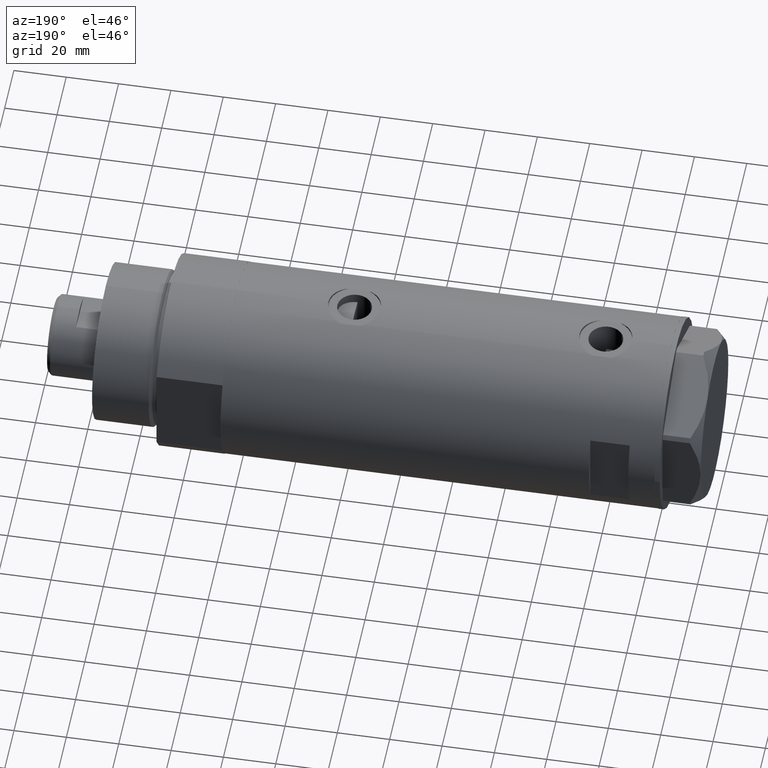
[diagram: clean part render]
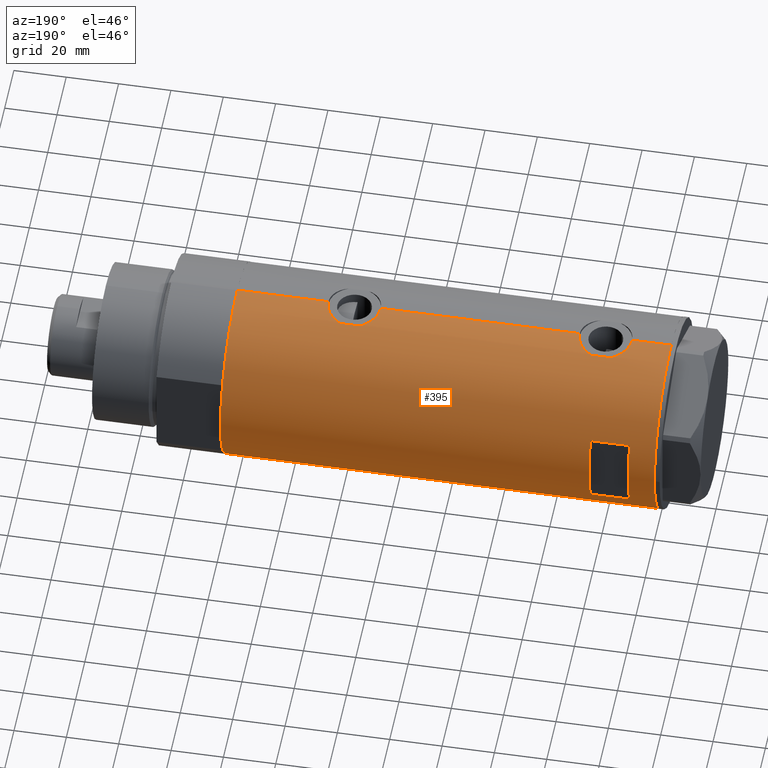
[diagram: same view with one face highlighted and labeled with its STEP entity id]
A machine part, auxiliary view. The second image highlights one B-rep face of the part: STEP entity #395.
In plain terms, the highlighted cylindrical surface (partial cylindrical patch) has radius 36.5 mm, axis along (-1, -0, 0).
Its self-contained STEP definition (entity closure, byte-faithful):
#2 = VERTEX_POINT ( 'NONE', #1374 ) ;
#21 = CARTESIAN_POINT ( 'NONE',  ( 36.50000000000000000, 0.000000000000000000, -82.90000000000000568 ) ) ;
#23 = CARTESIAN_POINT ( 'NONE',  ( -36.30181775639988473, 3.813582387016784203, -51.56836057574439280 ) ) ;
#27 = CIRCLE ( 'NONE', #903, 36.50000000000000000 ) ;
#45 = CIRCLE ( 'NONE', #542, 36.50000000000000000 ) ;
#48 = CARTESIAN_POINT ( 'NONE',  ( -36.36688032967139605, 3.133094607697487266, -41.17663567362491506 ) ) ;
#91 = CARTESIAN_POINT ( 'NONE',  ( -36.01524716445113938, 5.931039972055519804, -48.61330731864658361 ) ) ;
#106 = CARTESIAN_POINT ( 'NONE',  ( 36.45954139109321090, 1.735915671103594571, -28.24863218852990698 ) ) ;
#111 = CARTESIAN_POINT ( 'NONE',  ( -36.46598788992681506, 1.625721481788708456, 52.85127953286164626 ) ) ;
#114 = CARTESIAN_POINT ( 'NONE',  ( -36.49292802938587243, 0.8230716655928884684, -52.80906938753516044 ) ) ;
#138 = CARTESIAN_POINT ( 'NONE',  ( -36.26695135241003953, 4.128455078791303023, 54.18962408355263705 ) ) ;
#147 = EDGE_CURVE ( 'NONE', #950, #3242, #27, .T. ) ;
#157 = CARTESIAN_POINT ( 'NONE',  ( 36.50000000000000000, 4.344604608721388599E-19, 67.90000000000000568 ) ) ;
#161 = CARTESIAN_POINT ( 'NONE',  ( 35.79766710091576698, 7.135341284989892507, -45.12350520560902822 ) ) ;
#164 = EDGE_CURVE ( 'NONE', #4282, #4443, #4147, .T. ) ;
#175 = CARTESIAN_POINT ( 'NONE',  ( 36.18937351723702989, 4.773052864917642246, 66.70135993118843487 ) ) ;
#196 = CARTESIAN_POINT ( 'NONE',  ( -35.99530513653992614, 6.049346314076198716, 57.27667416964168012 ) ) ;
#211 = CARTESIAN_POINT ( 'NONE',  ( -36.44504802628534890, 2.011764947064734077, 64.82093644908518115 ) ) ;
#226 = LINE ( 'NONE', #251, #3293 ) ;
#251 = CARTESIAN_POINT ( 'NONE',  ( -36.50000000000000000, 4.469960816887838430E-15, -82.90000000000000568 ) ) ;
#252 = ORIENTED_EDGE ( 'NONE', *, *, #3028, .T. ) ;
#257 = ORIENTED_EDGE ( 'NONE', *, *, #655, .T. ) ;
#274 = CARTESIAN_POINT ( 'NONE',  ( 35.29999999999999716, 9.282241108697837362, 61.62021504754764578 ) ) ;
#365 = CARTESIAN_POINT ( 'NONE',  ( -36.01679413914727235, 5.919813138266332153, -44.58500308952962143 ) ) ;
#379 = DIRECTION ( 'NONE',  ( 1.000000000000000000, 0.000000000000000000, 0.000000000000000000 ) ) ;
#395 = ADVANCED_FACE ( 'NONE', ( #1275, #3651 ), #1903, .T. ) ;
#421 = CARTESIAN_POINT ( 'NONE',  ( 35.29999999999999716, 9.282241108697837362, -82.90000000000000568 ) ) ;
#432 = CARTESIAN_POINT ( 'NONE',  ( -35.98846897517729815, 6.089479646546508640, -45.17765108453480849 ) ) ;
#447 = EDGE_CURVE ( 'NONE', #2907, #3508, #3029, .T. ) ;
#451 = CARTESIAN_POINT ( 'NONE',  ( -36.30200038006934449, 3.811959488093747961, -41.63027895163993009 ) ) ;
#460 = CARTESIAN_POINT ( 'NONE',  ( 36.50000000000000000, 0.000000000000000000, -48.10000000000000142 ) ) ;
#492 = DIRECTION ( 'NONE',  ( 0.000000000000000000, 0.000000000000000000, 1.000000000000000000 ) ) ;
#496 = CARTESIAN_POINT ( 'NONE',  ( -36.11206433103227909, 5.308658295084034862, 55.59515351959023377 ) ) ;
#516 = CARTESIAN_POINT ( 'NONE',  ( 36.49999999999999289, 0.4961820988516169595, 67.89999999999997726 ) ) ;
#527 = DIRECTION ( 'NONE',  ( 0.000000000000000000, 0.000000000000000000, 1.000000000000000000 ) ) ;
#542 = AXIS2_PLACEMENT_3D ( 'NONE', #2905, #2929, #3903 ) ;
#543 = CARTESIAN_POINT ( 'NONE',  ( 36.34070350304396868, 3.414301401755547083, 48.49763782624093267 ) ) ;
#552 = DIRECTION ( 'NONE',  ( 1.000000000000000000, 0.000000000000000000, 0.000000000000000000 ) ) ;
#554 = CARTESIAN_POINT ( 'NONE',  ( -36.43371204571226230, 2.206934156026284732, 64.75097281670994676 ) ) ;
#586 = EDGE_CURVE ( 'NONE', #3675, #2916, #4466, .T. ) ;
#590 = CARTESIAN_POINT ( 'NONE',  ( 0.000000000000000000, 0.000000000000000000, -82.90000000000000568 ) ) ;
#612 = CARTESIAN_POINT ( 'NONE',  ( 35.34894515018993388, 9.096104616284849342, 53.71535916533458987 ) ) ;
#628 = VERTEX_POINT ( 'NONE', #2176 ) ;
#630 = ORIENTED_EDGE ( 'NONE', *, *, #4352, .F. ) ;
#640 = EDGE_CURVE ( 'NONE', #3175, #2916, #1147, .T. ) ;
#655 = EDGE_CURVE ( 'NONE', #828, #4469, #3882, .T. ) ;
#709 = CARTESIAN_POINT ( 'NONE',  ( -36.19597718496778782, 4.710322426433910081, -50.72851610762017316 ) ) ;
#713 = EDGE_CURVE ( 'NONE', #1276, #3434, #1879, .T. ) ;
#731 = CARTESIAN_POINT ( 'NONE',  ( -36.39522946636255085, 2.769519034821246617, -52.20663923731272860 ) ) ;
#733 = ORIENTED_EDGE ( 'NONE', *, *, #1802, .F. ) ;
#742 = B_SPLINE_CURVE_WITH_KNOTS ( 'NONE', 3,
 ( #3149, #3897, #2414, #2150, #3507, #2462, #1447, #2120, #48, #451, #2830, #1399, #1108, #2100, #2483, #3871, #1466, #365, #3553, #432, #2783, #1069, #1740, #1805, #3194, #91, #804, #4139, #2852, #1043, #4235, #709, #1133, #23, #4165, #2442, #731, #2598, #1240, #4328, #114, #1224, #4281 ),
 .UNSPECIFIED., .F., .F.,
 ( 4, 2, 2, 2, 2, 2, 2, 2, 1, 2, 2, 2, 2, 2, 2, 2, 2, 2, 2, 2, 2, 4 ),
 ( 7.251201204191552072E-19, 0.001223527801214152827, 0.001835291701821226964, 0.002447055602428301752, 0.003670583403642443086, 0.004894111204856584421, 0.006117639006070725756, 0.006729402906677795122, 0.007341166807284864489, 0.007952930707891932988, 0.008564694608499004089, 0.009788222409713161903, 0.01101175021092732145, 0.01223527801214148100, 0.01284704191274855904, 0.01345880581335564055, 0.01468233361456980184, 0.01590586141578396312, 0.01651762531639104289, 0.01712938921699812267, 0.01835291701821228222, 0.01957644481942644524 ),
 .UNSPECIFIED. ) ;
#763 = CARTESIAN_POINT ( 'NONE',  ( 36.34070350304396868, 3.414301401755547083, -47.50236217375907444 ) ) ;
#791 = DIRECTION ( 'NONE',  ( -0.000000000000000000, -0.000000000000000000, -1.000000000000000000 ) ) ;
#804 = CARTESIAN_POINT ( 'NONE',  ( -36.05296344941215381, 5.695624845616832133, -49.18154856536755659 ) ) ;
#811 = CARTESIAN_POINT ( 'NONE',  ( 36.36225053217121683, 3.177096004138048713, -47.58516024475981965 ) ) ;
#817 = DIRECTION ( 'NONE',  ( -0.000000000000000000, -0.000000000000000000, -1.000000000000000000 ) ) ;
#828 = VERTEX_POINT ( 'NONE', #274 ) ;
#829 = CARTESIAN_POINT ( 'NONE',  ( 35.34894515018993388, 9.096104616284849342, -42.28464083466543144 ) ) ;
#855 = CARTESIAN_POINT ( 'NONE',  ( 35.52737867031126484, 8.373910777960910323, -43.58860356717065798 ) ) ;
#862 = DIRECTION ( 'NONE',  ( 1.000000000000000000, 0.000000000000000000, 0.000000000000000000 ) ) ;
#865 = CARTESIAN_POINT ( 'NONE',  ( -35.96094343308265451, 6.249843792257625097, 59.31087110344572011 ) ) ;
#890 = CARTESIAN_POINT ( 'NONE',  ( 35.69321149401850590, 7.633476302278302761, 64.36463072166442601 ) ) ;
#901 = CARTESIAN_POINT ( 'NONE',  ( -36.36688032967139605, 3.133094607697478828, 64.32336432637509915 ) ) ;
#903 = AXIS2_PLACEMENT_3D ( 'NONE', #2825, #1103, #2478 ) ;
#930 = CARTESIAN_POINT ( 'NONE',  ( 14.49137674618942917, 33.50000000000000000, 57.89999999999999147 ) ) ;
#931 = EDGE_CURVE ( 'NONE', #1739, #3434, #742, .T. ) ;
#939 = CARTESIAN_POINT ( 'NONE',  ( 36.18948008481302026, 4.772042575486204363, 49.09822368756843503 ) ) ;
#950 = VERTEX_POINT ( 'NONE', #3618 ) ;
#1021 = DIRECTION ( 'NONE',  ( 0.000000000000000000, 0.000000000000000000, 1.000000000000000000 ) ) ;
#1043 = CARTESIAN_POINT ( 'NONE',  ( -36.11206433103227198, 5.308658295084047296, -49.90484648040978755 ) ) ;
#1058 = DIRECTION ( 'NONE',  ( 0.000000000000000000, 0.000000000000000000, 1.000000000000000000 ) ) ;
#1069 = CARTESIAN_POINT ( 'NONE',  ( -35.96094343308264740, 6.249843792257639308, -46.18912889655430121 ) ) ;
#1103 = DIRECTION ( 'NONE',  ( -0.000000000000000000, -0.000000000000000000, -1.000000000000000000 ) ) ;
#1108 = CARTESIAN_POINT ( 'NONE',  ( -36.16126303108063667, 4.966520032693304998, -42.78358772254716058 ) ) ;
#1118 = CARTESIAN_POINT ( 'NONE',  ( 36.18948008481302026, 4.772042575486204363, -46.90177631243157919 ) ) ;
#1124 = CARTESIAN_POINT ( 'NONE',  ( 35.79715675463676661, 7.130463293899343746, -31.08444415894004109 ) ) ;
#1133 = CARTESIAN_POINT ( 'NONE',  ( -36.26695135241004664, 4.128455078791307464, -51.31037591644739848 ) ) ;
#1136 = CIRCLE ( 'NONE', #2501, 36.50000000000000000 ) ;
#1147 = LINE ( 'NONE', #2493, #1833 ) ;
#1149 = CARTESIAN_POINT ( 'NONE',  ( 36.50000000000000000, 0.000000000000000000, -48.10000000000000142 ) ) ;
#1165 = CARTESIAN_POINT ( 'NONE',  ( 35.40502660484482789, 8.876998817796915020, -42.73098724071236632 ) ) ;
#1170 = CARTESIAN_POINT ( 'NONE',  ( 36.29611582693038940, 3.878758190381168092, -28.86955010900449992 ) ) ;
#1174 = CARTESIAN_POINT ( 'NONE',  ( -36.40902375114222167, 2.582415566883931479, 53.20478308530312006 ) ) ;
#1183 = CARTESIAN_POINT ( 'NONE',  ( 36.49999999999999289, 1.005842003469123558, -48.09999999999999432 ) ) ;
#1195 = CARTESIAN_POINT ( 'NONE',  ( -35.96805604460922012, 6.209309709790225007, 58.07887241731829420 ) ) ;
#1215 = CARTESIAN_POINT ( 'NONE',  ( -36.50000000000000000, 7.463603853851042361E-16, -40.34999999999999432 ) ) ;
#1218 = LINE ( 'NONE', #2591, #1624 ) ;
#1220 = CARTESIAN_POINT ( 'NONE',  ( -36.35033317675380715, 3.306376218664574207, 53.59229280583950583 ) ) ;
#1224 = CARTESIAN_POINT ( 'NONE',  ( -36.50000000000000711, 0.4083036190459276016, -52.85000000000001563 ) ) ;
#1225 = CARTESIAN_POINT ( 'NONE',  ( 35.72794581931695745, 7.469526493268204170, 64.55339796728263480 ) ) ;
#1237 = CARTESIAN_POINT ( 'NONE',  ( -36.50000000000000000, 0.4137727629436733778, 65.15000000000000568 ) ) ;
#1240 = CARTESIAN_POINT ( 'NONE',  ( -36.44628644024910358, 2.015372769639944828, -52.53028128013585984 ) ) ;
#1246 = LINE ( 'NONE', #2288, #3371 ) ;
#1261 = CARTESIAN_POINT ( 'NONE',  ( 35.29999999999999716, 9.282241108697837362, 61.62021504754764578 ) ) ;
#1262 = VECTOR ( 'NONE', #3693, 1000.000000000000000 ) ;
#1275 = FACE_BOUND ( 'NONE', #1682, .T. ) ;
#1276 = VERTEX_POINT ( 'NONE', #2779 ) ;
#1290 = DIRECTION ( 'NONE',  ( 0.000000000000000000, 0.000000000000000000, 1.000000000000000000 ) ) ;
#1291 = ORIENTED_EDGE ( 'NONE', *, *, #1966, .T. ) ;
#1374 = CARTESIAN_POINT ( 'NONE',  ( 36.50000000000000000, 0.000000000000000000, -82.90000000000000568 ) ) ;
#1398 = AXIS2_PLACEMENT_3D ( 'NONE', #590, #2979, #552 ) ;
#1399 = CARTESIAN_POINT ( 'NONE',  ( -36.19624103943463211, 4.708090268046854376, -42.46938778553861482 ) ) ;
#1417 = VECTOR ( 'NONE', #1781, 1000.000000000000000 ) ;
#1418 = CARTESIAN_POINT ( 'NONE',  ( 0.000000000000000000, 0.000000000000000000, -82.90000000000000568 ) ) ;
#1424 = CARTESIAN_POINT ( 'NONE',  ( 36.50000000000000000, 0.000000000000000000, 82.90000000000000568 ) ) ;
#1434 = B_SPLINE_CURVE_WITH_KNOTS ( 'NONE', 3,
 ( #1569, #1237, #3891, #2980, #3990, #211, #554, #1587, #901, #1930, #2614, #4358, #3317, #2269, #3653, #1511, #4261, #2966, #2880, #3976, #4297, #865, #1823, #1195, #196, #2899, #3929, #4277, #3274, #496, #4341, #2570, #138, #3297, #1220, #2594, #3212, #1174, #2545, #111, #2165, #1528, #2227 ),
 .UNSPECIFIED., .F., .F.,
 ( 4, 2, 2, 2, 2, 2, 2, 2, 1, 2, 2, 2, 2, 2, 2, 2, 2, 2, 2, 2, 2, 4 ),
 ( 2.134326792795658191E-19, 0.001223527801214134613, 0.001835291701821197691, 0.002447055602428260986, 0.003670583403642388443, 0.004894111204856515032, 0.006117639006070642489, 0.006729402906677714458, 0.007341166807284786426, 0.007952930707891856660, 0.008564694608498929496, 0.009788222409713092514, 0.01101175021092725553, 0.01223527801214141682, 0.01284704191274850180, 0.01345880581335558331, 0.01468233361456974632, 0.01590586141578391108, 0.01651762531639099432, 0.01712938921699807757, 0.01835291701821224059, 0.01957644481942640707 ),
 .UNSPECIFIED. ) ;
#1447 = CARTESIAN_POINT ( 'NONE',  ( -36.43371204571226940, 2.206934156026296723, -40.74902718329001772 ) ) ;
#1449 = EDGE_CURVE ( 'NONE', #3242, #1600, #1218, .T. ) ;
#1460 = CARTESIAN_POINT ( 'NONE',  ( 35.52347503888660185, 8.410566959990466884, -32.60046032740658006 ) ) ;
#1464 = LINE ( 'NONE', #21, #1417 ) ;
#1466 = CARTESIAN_POINT ( 'NONE',  ( -36.03936508729894683, 5.782103729777510637, -44.20129467396203893 ) ) ;
#1472 = EDGE_CURVE ( 'NONE', #628, #3324, #1434, .T. ) ;
#1502 = CARTESIAN_POINT ( 'NONE',  ( 35.93456089024233790, 6.410413305453381838, -45.79085963204146026 ) ) ;
#1511 = CARTESIAN_POINT ( 'NONE',  ( -36.06675137892952421, 5.607935153446965693, 61.66681826008759515 ) ) ;
#1528 = CARTESIAN_POINT ( 'NONE',  ( -36.50000000000001421, 0.4083036190459299886, 52.65000000000002700 ) ) ;
#1569 = CARTESIAN_POINT ( 'NONE',  ( -36.50000000000000000, 2.196845629780489385E-16, 65.15000000000000568 ) ) ;
#1570 = CARTESIAN_POINT ( 'NONE',  ( -14.49137674618942917, 33.50000000000000000, 57.89999999999999147 ) ) ;
#1587 = CARTESIAN_POINT ( 'NONE',  ( -36.39638105034455862, 2.774378062517167454, 64.51543332699104383 ) ) ;
#1600 = VERTEX_POINT ( 'NONE', #930 ) ;
#1603 = CARTESIAN_POINT ( 'NONE',  ( 36.26917563968162739, 4.104523505324179311, 48.77784011632527239 ) ) ;
#1618 = CARTESIAN_POINT ( 'NONE',  ( 36.50000000000000000, 4.344611676915099379E-19, -28.10000000000000142 ) ) ;
#1624 = VECTOR ( 'NONE', #817, 1000.000000000000000 ) ;
#1628 = CARTESIAN_POINT ( 'NONE',  ( 36.29420020483470921, 3.877527130731371230, 48.67901025599706344 ) ) ;
#1682 = EDGE_LOOP ( 'NONE', ( #733, #2185, #3832, #2534 ) ) ;
#1692 = AXIS2_PLACEMENT_3D ( 'NONE', #4117, #1021, #862 ) ;
#1735 = CARTESIAN_POINT ( 'NONE',  ( 35.39804469700248291, 8.909380959553011792, -33.44946835517156103 ) ) ;
#1738 = CARTESIAN_POINT ( 'NONE',  ( -36.50000000000000000, 4.469960816887838430E-15, 82.90000000000000568 ) ) ;
#1739 = VERTEX_POINT ( 'NONE', #1215 ) ;
#1740 = CARTESIAN_POINT ( 'NONE',  ( -35.96088929326157313, 6.250155299092693184, -47.00610494763245129 ) ) ;
#1758 = VECTOR ( 'NONE', #527, 1000.000000000000000 ) ;
#1781 = DIRECTION ( 'NONE',  ( 0.000000000000000000, 0.000000000000000000, 1.000000000000000000 ) ) ;
#1789 = B_SPLINE_CURVE_WITH_KNOTS ( 'NONE', 3,
 ( #3525, #1735, #1460, #2844, #4228, #1124, #2500, #3889, #2406, #2048, #2963, #1170, #2160, #3629, #2564, #3612, #106, #3950, #4338, #4272 ),
 .UNSPECIFIED., .F., .F.,
 ( 4, 2, 2, 2, 2, 2, 2, 2, 2, 4 ),
 ( 0.000000000000000000, 0.002977391289382820029, 0.003721739111728531758, 0.004466086934074251294, 0.005954782578765692100, 0.007443478223457132038, 0.008932173868148571977, 0.009676521690494288910, 0.01042086951284000758, 0.01190956515753144491 ),
 .UNSPECIFIED. ) ;
#1793 = CARTESIAN_POINT ( 'NONE',  ( 35.29999999999999716, 9.282241108697837362, -41.82021504754764862 ) ) ;
#1802 = EDGE_CURVE ( 'NONE', #4461, #950, #4271, .T. ) ;
#1805 = CARTESIAN_POINT ( 'NONE',  ( -35.96805604460922012, 6.209309709790239218, -47.42112758268170580 ) ) ;
#1823 = CARTESIAN_POINT ( 'NONE',  ( -35.96088929326158734, 6.250155299092678085, 58.49389505236757003 ) ) ;
#1833 = VECTOR ( 'NONE', #3606, 1000.000000000000000 ) ;
#1841 = ORIENTED_EDGE ( 'NONE', *, *, #640, .T. ) ;
#1873 = CARTESIAN_POINT ( 'NONE',  ( 36.40008489419981430, 2.709263960908035784, 67.52918104596393789 ) ) ;
#1879 = LINE ( 'NONE', #2932, #3640 ) ;
#1883 = CARTESIAN_POINT ( 'NONE',  ( 14.49137674618942739, 33.50000000000000000, 72.89999999999999147 ) ) ;
#1893 = CARTESIAN_POINT ( 'NONE',  ( 36.13018480315371761, 5.199168368309162958, 49.34353501791949981 ) ) ;
#1903 = CYLINDRICAL_SURFACE ( 'NONE', #1398, 36.50000000000000000 ) ;
#1922 = CARTESIAN_POINT ( 'NONE',  ( 35.40502660484482789, 8.876998817796915020, 53.26901275928763368 ) ) ;
#1930 = CARTESIAN_POINT ( 'NONE',  ( -36.30200038006935159, 3.811959488093736415, 63.86972104836005570 ) ) ;
#1966 = EDGE_CURVE ( 'NONE', #628, #4443, #2315, .T. ) ;
#1979 = CARTESIAN_POINT ( 'NONE',  ( 35.29999999999999716, 9.282241108697837362, -41.82021504754764862 ) ) ;
#2048 = CARTESIAN_POINT ( 'NONE',  ( 36.12877841835538106, 5.208882251161926824, -29.54946835209708667 ) ) ;
#2087 = ORIENTED_EDGE ( 'NONE', *, *, #2378, .F. ) ;
#2100 = CARTESIAN_POINT ( 'NONE',  ( -36.11199073531169290, 5.309184630646996972, -43.29587159233165039 ) ) ;
#2120 = CARTESIAN_POINT ( 'NONE',  ( -36.39638105034455151, 2.774378062517180332, -40.98456667300897749 ) ) ;
#2133 = CARTESIAN_POINT ( 'NONE',  ( 35.59366931936805400, 8.089554397885871495, -43.99927319087814936 ) ) ;
#2150 = CARTESIAN_POINT ( 'NONE',  ( -36.47290054070997911, 1.420408912806975898, -40.51013018339984484 ) ) ;
#2155 = CARTESIAN_POINT ( 'NONE',  ( 36.26917563968162739, 4.104523505324179311, -47.22215988367477024 ) ) ;
#2160 = CARTESIAN_POINT ( 'NONE',  ( 36.34264078466111414, 3.418717136061404815, -28.68950965959248123 ) ) ;
#2165 = CARTESIAN_POINT ( 'NONE',  ( -36.49292802938586533, 0.8230716655928878023, 52.69093061246486798 ) ) ;
#2176 = CARTESIAN_POINT ( 'NONE',  ( -36.50000000000000000, 2.196845629780489385E-16, 65.15000000000000568 ) ) ;
#2185 = ORIENTED_EDGE ( 'NONE', *, *, #2218, .F. ) ;
#2210 = CARTESIAN_POINT ( 'NONE',  ( 36.45954139109321801, 1.735915671103596125, 67.75136781147011789 ) ) ;
#2218 = EDGE_CURVE ( 'NONE', #1600, #4461, #45, .T. ) ;
#2227 = CARTESIAN_POINT ( 'NONE',  ( -36.50000000000000000, 4.469960493369248271E-15, 52.65000000000001279 ) ) ;
#2269 = CARTESIAN_POINT ( 'NONE',  ( -36.11199073531170001, 5.309184630646985426, 62.20412840766834250 ) ) ;
#2288 = CARTESIAN_POINT ( 'NONE',  ( 36.50000000000000000, 0.000000000000000000, -82.90000000000000568 ) ) ;
#2307 = CARTESIAN_POINT ( 'NONE',  ( 36.00145998247697321, 6.026272765084660143, 65.89550388212386167 ) ) ;
#2311 = CARTESIAN_POINT ( 'NONE',  ( 35.59366931936805400, 8.089554397885871495, 52.00072680912185774 ) ) ;
#2315 = LINE ( 'NONE', #3311, #1262 ) ;
#2326 = EDGE_CURVE ( 'NONE', #3508, #4469, #2549, .T. ) ;
#2378 = EDGE_CURVE ( 'NONE', #2, #3675, #1246, .T. ) ;
#2406 = CARTESIAN_POINT ( 'NONE',  ( 36.00145998247696610, 6.026272765084661920, -30.10449611787613478 ) ) ;
#2414 = CARTESIAN_POINT ( 'NONE',  ( -36.49297130294515057, 0.8204796224394304005, -40.39068307782265066 ) ) ;
#2437 = EDGE_CURVE ( 'NONE', #1739, #3324, #226, .T. ) ;
#2438 = B_SPLINE_CURVE_WITH_KNOTS ( 'NONE', 3,
 ( #1261, #4283, #3996, #890, #1225, #3303, #2599, #3619, #2307, #2951, #175, #2987, #3961, #1873, #3979, #3323, #2210, #4024, #516, #157 ),
 .UNSPECIFIED., .F., .F.,
 ( 4, 2, 2, 2, 2, 2, 2, 2, 2, 4 ),
 ( 0.000000000000000000, 0.002977391289382842147, 0.003721739111728546070, 0.004466086934074248692, 0.005954782578765684294, 0.007443478223457119895, 0.008932173868148556364, 0.009676521690494280237, 0.01042086951284000584, 0.01190956515753144838 ),
 .UNSPECIFIED. ) ;
#2442 = CARTESIAN_POINT ( 'NONE',  ( -36.36587679577596077, 3.131448301962866054, -52.01282465573622460 ) ) ;
#2462 = CARTESIAN_POINT ( 'NONE',  ( -36.44504802628535600, 2.011764947064739406, -40.67906355091481174 ) ) ;
#2478 = DIRECTION ( 'NONE',  ( 1.000000000000000000, 1.776356839400250465E-15, 0.000000000000000000 ) ) ;
#2481 = ORIENTED_EDGE ( 'NONE', *, *, #164, .F. ) ;
#2483 = CARTESIAN_POINT ( 'NONE',  ( -36.09617453667819831, 5.415318599347969553, -43.47293357327087193 ) ) ;
#2493 = CARTESIAN_POINT ( 'NONE',  ( 35.29999999999999716, 9.282241108697837362, -82.90000000000000568 ) ) ;
#2500 = CARTESIAN_POINT ( 'NONE',  ( 35.83170458557578542, 6.955065627744200007, -30.91058328087535401 ) ) ;
#2501 = AXIS2_PLACEMENT_3D ( 'NONE', #1418, #1058, #379 ) ;
#2534 = ORIENTED_EDGE ( 'NONE', *, *, #147, .F. ) ;
#2545 = CARTESIAN_POINT ( 'NONE',  ( -36.44628644024910358, 2.015372769639941275, 52.96971871986416858 ) ) ;
#2549 = B_SPLINE_CURVE_WITH_KNOTS ( 'NONE', 3,
 ( #3019, #3709, #2991, #3965, #543, #1628, #1603, #939, #1893, #2973, #3643, #2668, #3669, #2311, #4369, #1922, #612, #3689 ),
 .UNSPECIFIED., .F., .F.,
 ( 4, 2, 2, 2, 2, 2, 2, 2, 4 ),
 ( 6.505213034913026604E-19, 0.002973648994175712851, 0.003717061242719640196, 0.004460473491263567541, 0.005947297988351423099, 0.007434122485439277790, 0.008920946982527131613, 0.01040777147961498630, 0.01189459597670284099 ),
 .UNSPECIFIED. ) ;
#2563 = CARTESIAN_POINT ( 'NONE',  ( -14.49137674618942739, 33.50000000000000000, -82.90000000000000568 ) ) ;
#2564 = CARTESIAN_POINT ( 'NONE',  ( 36.41717583764485511, 2.469534783404757405, -28.40651988824328456 ) ) ;
#2570 = CARTESIAN_POINT ( 'NONE',  ( -36.19597718496778072, 4.710322426433902088, 54.77148389237986237 ) ) ;
#2582 = ORIENTED_EDGE ( 'NONE', *, *, #931, .F. ) ;
#2591 = CARTESIAN_POINT ( 'NONE',  ( 14.49137674618942739, 33.50000000000000000, -82.90000000000000568 ) ) ;
#2594 = CARTESIAN_POINT ( 'NONE',  ( -36.36587679577596077, 3.131448301962862057, 53.48717534426381803 ) ) ;
#2598 = CARTESIAN_POINT ( 'NONE',  ( -36.40902375114222167, 2.582415566883932811, -52.29521691469690836 ) ) ;
#2599 = CARTESIAN_POINT ( 'NONE',  ( 35.83170458557579963, 6.955065627744201784, 65.08941671912468507 ) ) ;
#2614 = CARTESIAN_POINT ( 'NONE',  ( -36.26643311080165688, 4.132772529026629726, 63.60619405269881099 ) ) ;
#2626 = VECTOR ( 'NONE', #791, 1000.000000000000000 ) ;
#2668 = CARTESIAN_POINT ( 'NONE',  ( 35.79766710091576698, 7.135341284989892507, 50.87649479439096467 ) ) ;
#2676 = ORIENTED_EDGE ( 'NONE', *, *, #4136, .F. ) ;
#2693 = ORIENTED_EDGE ( 'NONE', *, *, #2437, .T. ) ;
#2779 = CARTESIAN_POINT ( 'NONE',  ( -36.50000000000000000, 4.469960816887838430E-15, -82.90000000000000568 ) ) ;
#2783 = CARTESIAN_POINT ( 'NONE',  ( -35.96793274302673638, 6.210029014836893069, -45.78305762320682248 ) ) ;
#2825 = CARTESIAN_POINT ( 'NONE',  ( 0.000000000000000000, 0.000000000000000000, 72.89999999999999147 ) ) ;
#2830 = CARTESIAN_POINT ( 'NONE',  ( -36.26643311080166399, 4.132772529026643049, -41.89380594730118190 ) ) ;
#2840 = CARTESIAN_POINT ( 'NONE',  ( 36.00287854058830561, 6.017835360303004144, -46.10188117181726142 ) ) ;
#2844 = CARTESIAN_POINT ( 'NONE',  ( 35.69321149401852011, 7.633476302278306314, -31.63536927833558110 ) ) ;
#2852 = CARTESIAN_POINT ( 'NONE',  ( -36.09643313249890895, 5.413601294342283765, -49.73007773391854869 ) ) ;
#2865 = CARTESIAN_POINT ( 'NONE',  ( 35.72860827204725354, 7.471059959301286746, -44.76525150474409998 ) ) ;
#2880 = CARTESIAN_POINT ( 'NONE',  ( -35.99700617875953412, 6.038972911021577517, 60.52333185798319448 ) ) ;
#2894 = CARTESIAN_POINT ( 'NONE',  ( 35.29999999999999716, 9.282241108697837362, -34.37978495245235422 ) ) ;
#2899 = CARTESIAN_POINT ( 'NONE',  ( -36.01524716445113228, 5.931039972055507370, 56.88669268135342350 ) ) ;
#2905 = CARTESIAN_POINT ( 'NONE',  ( 0.000000000000000000, 0.000000000000000000, 57.90000000000014779 ) ) ;
#2907 = VERTEX_POINT ( 'NONE', #1618 ) ;
#2916 = VERTEX_POINT ( 'NONE', #1979 ) ;
#2929 = DIRECTION ( 'NONE',  ( 0.000000000000000000, 4.625929269271492422E-15, 1.000000000000000000 ) ) ;
#2932 = CARTESIAN_POINT ( 'NONE',  ( -36.50000000000000000, 4.469960816887838430E-15, -82.90000000000000568 ) ) ;
#2951 = CARTESIAN_POINT ( 'NONE',  ( 36.12877841835537396, 5.208882251161923271, 66.45053164790293465 ) ) ;
#2963 = CARTESIAN_POINT ( 'NONE',  ( 36.18937351723702989, 4.773052864917642246, -29.29864006881156513 ) ) ;
#2966 = CARTESIAN_POINT ( 'NONE',  ( -36.01679413914727235, 5.919813138266318830, 60.91499691047037146 ) ) ;
#2973 = CARTESIAN_POINT ( 'NONE',  ( 36.00287854058830561, 6.017835360303004144, 49.89811882818275990 ) ) ;
#2979 = DIRECTION ( 'NONE',  ( 0.000000000000000000, 0.000000000000000000, 1.000000000000000000 ) ) ;
#2980 = CARTESIAN_POINT ( 'NONE',  ( -36.47290054070997911, 1.420408912806971014, 64.98986981660013384 ) ) ;
#2987 = CARTESIAN_POINT ( 'NONE',  ( 36.29611582693039651, 3.878758190381167648, 67.13044989099549298 ) ) ;
#2991 = CARTESIAN_POINT ( 'NONE',  ( 36.45853166336078743, 1.985123042546143690, 48.04837329582261418 ) ) ;
#3019 = CARTESIAN_POINT ( 'NONE',  ( 36.50000000000000000, 0.000000000000000000, 47.89999999999999858 ) ) ;
#3028 = EDGE_CURVE ( 'NONE', #2, #1276, #1136, .T. ) ;
#3029 = LINE ( 'NONE', #4408, #1758 ) ;
#3042 = DIRECTION ( 'NONE',  ( 0.000000000000000000, 0.000000000000000000, 1.000000000000000000 ) ) ;
#3056 = EDGE_LOOP ( 'NONE', ( #252, #3210, #2582, #2693, #4482, #1291, #2481, #630, #2676, #257, #3724, #3233, #3636, #1841, #3849, #2087 ) ) ;
#3062 = VERTEX_POINT ( 'NONE', #4133 ) ;
#3096 = CARTESIAN_POINT ( 'NONE',  ( -36.50000000000000000, 4.469960493366092827E-15, -52.85000000000000853 ) ) ;
#3136 = EDGE_CURVE ( 'NONE', #3175, #2907, #1789, .T. ) ;
#3149 = CARTESIAN_POINT ( 'NONE',  ( -36.50000000000000000, 7.463603853851042361E-16, -40.34999999999999432 ) ) ;
#3175 = VERTEX_POINT ( 'NONE', #2894 ) ;
#3194 = CARTESIAN_POINT ( 'NONE',  ( -35.99530513653993324, 6.049346314076213815, -48.22332583035833409 ) ) ;
#3210 = ORIENTED_EDGE ( 'NONE', *, *, #713, .T. ) ;
#3212 = CARTESIAN_POINT ( 'NONE',  ( -36.39522946636254375, 2.769519034821240844, 53.29336076268729272 ) ) ;
#3233 = ORIENTED_EDGE ( 'NONE', *, *, #447, .F. ) ;
#3237 = CARTESIAN_POINT ( 'NONE',  ( 35.29999999999999716, 9.282241108697837362, 54.17978495245235138 ) ) ;
#3242 = VERTEX_POINT ( 'NONE', #1883 ) ;
#3267 = DIRECTION ( 'NONE',  ( 0.000000000000000000, 0.000000000000000000, 1.000000000000000000 ) ) ;
#3274 = CARTESIAN_POINT ( 'NONE',  ( -36.09643313249889474, 5.413601294342269554, 55.76992226608147973 ) ) ;
#3293 = VECTOR ( 'NONE', #1290, 1000.000000000000000 ) ;
#3297 = CARTESIAN_POINT ( 'NONE',  ( -36.30181775639987762, 3.813582387016778430, 53.93163942425564983 ) ) ;
#3303 = CARTESIAN_POINT ( 'NONE',  ( 35.79715675463678082, 7.130463293899336641, 64.91555584105995536 ) ) ;
#3311 = CARTESIAN_POINT ( 'NONE',  ( -36.50000000000000000, 4.469960816887838430E-15, -82.90000000000000568 ) ) ;
#3317 = CARTESIAN_POINT ( 'NONE',  ( -36.16126303108062956, 4.966520032693292563, 62.71641227745282521 ) ) ;
#3323 = CARTESIAN_POINT ( 'NONE',  ( 36.44688397185922213, 1.983417953489136965, 67.70449957648254724 ) ) ;
#3324 = VERTEX_POINT ( 'NONE', #4054 ) ;
#3359 = VECTOR ( 'NONE', #492, 1000.000000000000000 ) ;
#3371 = VECTOR ( 'NONE', #3042, 1000.000000000000000 ) ;
#3434 = VERTEX_POINT ( 'NONE', #3096 ) ;
#3507 = CARTESIAN_POINT ( 'NONE',  ( -36.46462099658057099, 1.618684470865508596, -40.55975602975155425 ) ) ;
#3508 = VERTEX_POINT ( 'NONE', #3754 ) ;
#3525 = CARTESIAN_POINT ( 'NONE',  ( 35.29999999999999716, 9.282241108697837362, -34.37978495245235422 ) ) ;
#3553 = CARTESIAN_POINT ( 'NONE',  ( -35.99700617875954123, 6.038972911021593504, -44.97666814201680552 ) ) ;
#3606 = DIRECTION ( 'NONE',  ( -0.000000000000000000, -0.000000000000000000, -1.000000000000000000 ) ) ;
#3612 = CARTESIAN_POINT ( 'NONE',  ( 36.44688397185921502, 1.983417953489134744, -28.29550042351748829 ) ) ;
#3618 = CARTESIAN_POINT ( 'NONE',  ( -14.49137674618942739, 33.50000000000000000, 72.89999999999999147 ) ) ;
#3619 = CARTESIAN_POINT ( 'NONE',  ( 35.93435287561198521, 6.411571491280764867, 65.58988644922843037 ) ) ;
#3629 = CARTESIAN_POINT ( 'NONE',  ( 36.40008489419980720, 2.709263960908029123, -28.47081895403607632 ) ) ;
#3636 = ORIENTED_EDGE ( 'NONE', *, *, #3136, .F. ) ;
#3640 = VECTOR ( 'NONE', #3267, 1000.000000000000000 ) ;
#3643 = CARTESIAN_POINT ( 'NONE',  ( 35.93456089024233790, 6.410413305453381838, 50.20914036795854685 ) ) ;
#3651 = FACE_OUTER_BOUND ( 'NONE', #3056, .T. ) ;
#3653 = CARTESIAN_POINT ( 'NONE',  ( -36.09617453667821962, 5.415318599347956230, 62.02706642672912807 ) ) ;
#3669 = CARTESIAN_POINT ( 'NONE',  ( 35.72860827204725354, 7.471059959301286746, 51.23474849525592134 ) ) ;
#3675 = VERTEX_POINT ( 'NONE', #1149 ) ;
#3689 = CARTESIAN_POINT ( 'NONE',  ( 35.29999999999999716, 9.282241108697837362, 54.17978495245235138 ) ) ;
#3693 = DIRECTION ( 'NONE',  ( 0.000000000000000000, 0.000000000000000000, 1.000000000000000000 ) ) ;
#3709 = CARTESIAN_POINT ( 'NONE',  ( 36.49999999999999289, 1.005842003469123558, 47.89999999999999147 ) ) ;
#3724 = ORIENTED_EDGE ( 'NONE', *, *, #2326, .F. ) ;
#3754 = CARTESIAN_POINT ( 'NONE',  ( 36.50000000000000000, 0.000000000000000000, 47.89999999999999858 ) ) ;
#3832 = ORIENTED_EDGE ( 'NONE', *, *, #1449, .F. ) ;
#3849 = ORIENTED_EDGE ( 'NONE', *, *, #586, .F. ) ;
#3871 = CARTESIAN_POINT ( 'NONE',  ( -36.06675137892952421, 5.607935153446982568, -43.83318173991241906 ) ) ;
#3882 = LINE ( 'NONE', #421, #2626 ) ;
#3889 = CARTESIAN_POINT ( 'NONE',  ( 35.93435287561198521, 6.411571491280768420, -30.41011355077158029 ) ) ;
#3891 = CARTESIAN_POINT ( 'NONE',  ( -36.49297130294515057, 0.8204796224394267368, 65.10931692217734224 ) ) ;
#3897 = CARTESIAN_POINT ( 'NONE',  ( -36.50000000000000000, 0.4137727629436737109, -40.35000000000000142 ) ) ;
#3903 = DIRECTION ( 'NONE',  ( 0.000000000000000000, 1.000000000000000000, -4.562560375171875891E-15 ) ) ;
#3904 = CARTESIAN_POINT ( 'NONE',  ( 36.29420020483470921, 3.877527130731371230, -47.32098974400295077 ) ) ;
#3929 = CARTESIAN_POINT ( 'NONE',  ( -36.05296344941216091, 5.695624845616822363, 56.31845143463244341 ) ) ;
#3950 = CARTESIAN_POINT ( 'NONE',  ( 36.48988646280794512, 0.9921857666168116818, -28.13671884865573602 ) ) ;
#3961 = CARTESIAN_POINT ( 'NONE',  ( 36.34264078466109993, 3.418717136061407480, 67.31049034040752588 ) ) ;
#3965 = CARTESIAN_POINT ( 'NONE',  ( 36.36225053217121683, 3.177096004138048713, 48.41483975524019456 ) ) ;
#3976 = CARTESIAN_POINT ( 'NONE',  ( -35.98846897517730525, 6.089479646546494429, 60.32234891546520572 ) ) ;
#3979 = CARTESIAN_POINT ( 'NONE',  ( 36.41717583764487642, 2.469534783404759182, 67.59348011175673321 ) ) ;
#3990 = CARTESIAN_POINT ( 'NONE',  ( -36.46462099658055678, 1.618684470865503489, 64.94024397024845996 ) ) ;
#3996 = CARTESIAN_POINT ( 'NONE',  ( 35.52347503888662317, 8.410566959990465108, 63.39953967259342704 ) ) ;
#4024 = CARTESIAN_POINT ( 'NONE',  ( 36.48988646280793802, 0.9921857666168150125, 67.86328115134426753 ) ) ;
#4054 = CARTESIAN_POINT ( 'NONE',  ( -36.50000000000000000, 4.469960493369248271E-15, 52.65000000000001279 ) ) ;
#4117 = CARTESIAN_POINT ( 'NONE',  ( 0.000000000000000000, 0.000000000000000000, 82.90000000000000568 ) ) ;
#4133 = CARTESIAN_POINT ( 'NONE',  ( 36.50000000000000000, 4.344604608721388599E-19, 67.90000000000000568 ) ) ;
#4136 = EDGE_CURVE ( 'NONE', #828, #3062, #2438, .T. ) ;
#4139 = CARTESIAN_POINT ( 'NONE',  ( -36.06690560274405044, 5.606949625760679901, -49.36885923958933375 ) ) ;
#4147 = CIRCLE ( 'NONE', #1692, 36.50000000000000000 ) ;
#4165 = CARTESIAN_POINT ( 'NONE',  ( -36.35033317675381426, 3.306376218664579536, -51.90770719416052970 ) ) ;
#4223 = CARTESIAN_POINT ( 'NONE',  ( 36.45853166336078743, 1.985123042546143690, -47.95162670417735740 ) ) ;
#4228 = CARTESIAN_POINT ( 'NONE',  ( 35.72794581931695035, 7.469526493268208611, -31.44660203271737586 ) ) ;
#4235 = CARTESIAN_POINT ( 'NONE',  ( -36.16083474549354548, 4.969527450313382388, -50.41205319122751405 ) ) ;
#4261 = CARTESIAN_POINT ( 'NONE',  ( -36.03936508729894683, 5.782103729777503531, 61.29870532603795397 ) ) ;
#4269 = CARTESIAN_POINT ( 'NONE',  ( 36.13018480315371761, 5.199168368309162958, -46.65646498208050730 ) ) ;
#4271 = LINE ( 'NONE', #2563, #3359 ) ;
#4272 = CARTESIAN_POINT ( 'NONE',  ( 36.50000000000000000, 4.344611676915099379E-19, -28.10000000000000142 ) ) ;
#4277 = CARTESIAN_POINT ( 'NONE',  ( -36.06690560274405044, 5.606949625760669242, 56.13114076041065914 ) ) ;
#4281 = CARTESIAN_POINT ( 'NONE',  ( -36.50000000000000000, 4.469960493366092827E-15, -52.85000000000000853 ) ) ;
#4282 = VERTEX_POINT ( 'NONE', #1424 ) ;
#4283 = CARTESIAN_POINT ( 'NONE',  ( 35.39804469700246869, 8.909380959553008239, 62.55053164482843187 ) ) ;
#4297 = CARTESIAN_POINT ( 'NONE',  ( -35.96793274302675769, 6.210029014836877970, 59.71694237679319173 ) ) ;
#4328 = CARTESIAN_POINT ( 'NONE',  ( -36.46598788992681506, 1.625721481788706013, -52.64872046713838216 ) ) ;
#4338 = CARTESIAN_POINT ( 'NONE',  ( 36.50000000000000000, 0.4961820988516186803, -28.10000000000000142 ) ) ;
#4341 = CARTESIAN_POINT ( 'NONE',  ( -36.16083474549355259, 4.969527450313370842, 55.08794680877250016 ) ) ;
#4352 = EDGE_CURVE ( 'NONE', #3062, #4282, #1464, .T. ) ;
#4358 = CARTESIAN_POINT ( 'NONE',  ( -36.19624103943462501, 4.708090268046841942, 63.03061221446136386 ) ) ;
#4369 = CARTESIAN_POINT ( 'NONE',  ( 35.52737867031126484, 8.373910777960910323, 52.41139643282934202 ) ) ;
#4408 = CARTESIAN_POINT ( 'NONE',  ( 36.50000000000000000, 0.000000000000000000, -82.90000000000000568 ) ) ;
#4443 = VERTEX_POINT ( 'NONE', #1738 ) ;
#4461 = VERTEX_POINT ( 'NONE', #1570 ) ;
#4466 = B_SPLINE_CURVE_WITH_KNOTS ( 'NONE', 3,
 ( #460, #1183, #4223, #811, #763, #3904, #2155, #1118, #4269, #2840, #1502, #161, #2865, #2133, #855, #1165, #829, #1793 ),
 .UNSPECIFIED., .F., .F.,
 ( 4, 2, 2, 2, 2, 2, 2, 2, 4 ),
 ( 6.505213034913026604E-19, 0.002973648994175712851, 0.003717061242719640196, 0.004460473491263567541, 0.005947297988351423099, 0.007434122485439277790, 0.008920946982527131613, 0.01040777147961498630, 0.01189459597670284099 ),
 .UNSPECIFIED. ) ;
#4469 = VERTEX_POINT ( 'NONE', #3237 ) ;
#4482 = ORIENTED_EDGE ( 'NONE', *, *, #1472, .F. ) ;